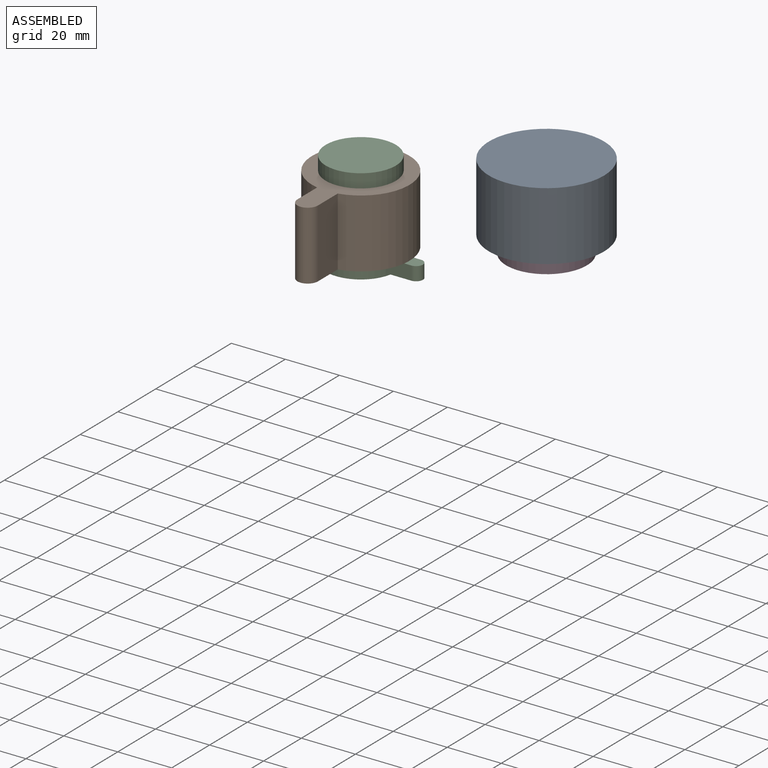
[diagram: assembled view]
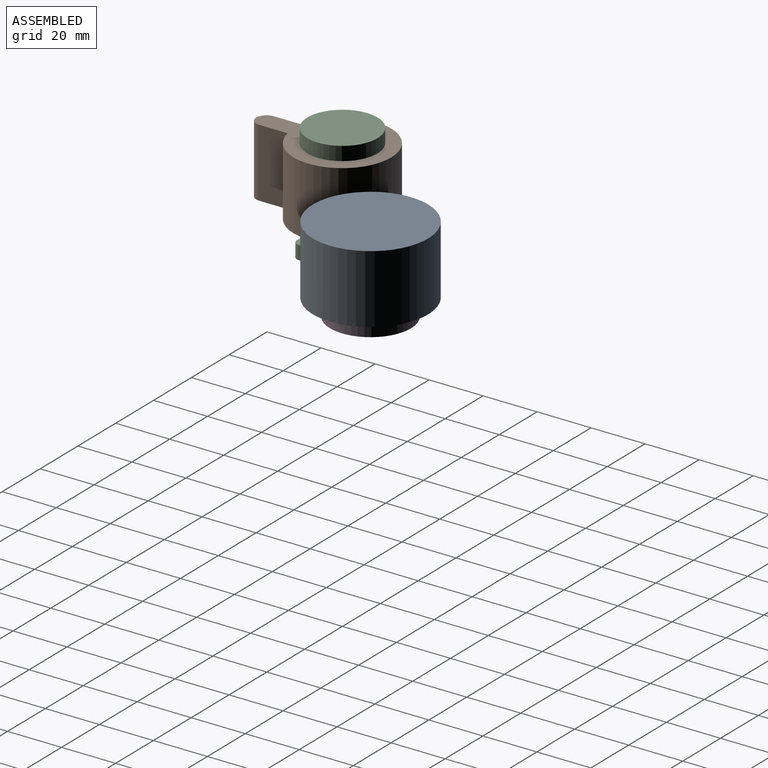
[diagram: assembled view, second angle]
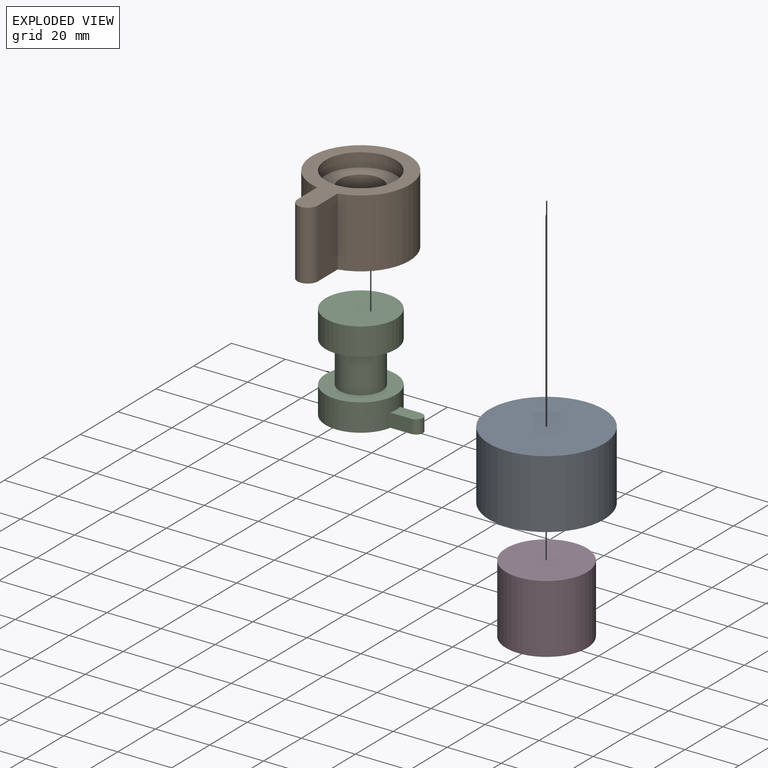
[diagram: exploded view]
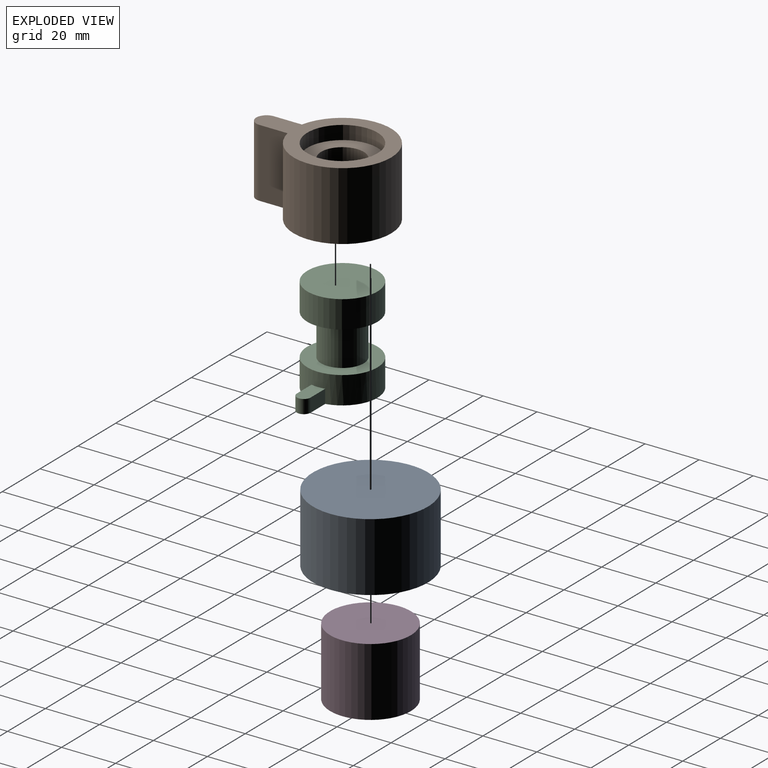
[diagram: exploded view, second angle]
ASSEMBLY  parts=4 mates=2
PART A: 5 faces, bbox 42.7x42.7x25.4 mm
  f0: cylinder r=21.34mm len=42.68mm, axis (0,0,-1), area 3405.4mm2, adj f1,f2
  f1: plane 42.68x42.68mm, normal (0,0,1), area 1430.4mm2, adj f0
  f2: plane 42.68x42.68mm, normal (0,0,-1), area 724.7mm2, adj f0,f3
  f3: cylinder r=14.99mm len=29.98mm, axis (0,0,-1), area 1794mm2, adj f2,f4
  f4: plane 29.98x29.98mm, normal (0,0,-1), area 705.7mm2, adj f3
PART B: 11 faces, bbox 36.2x50x25.4 mm
  f0: cylinder r=18.08mm len=36.17mm, axis (0,0,-1), area 2690.9mm2, adj f2,f3,f8,f9
  f1: cylinder r=7.92mm len=15.85mm, axis (0,0,1), area 758.7mm2, adj f5,f7
  f2: plane 49.99x36.17mm, normal (0,0,1), area 596.3mm2, adj f0,f4,f8,f9,f10
  f3: plane 49.99x36.17mm, normal (0,0,-1), area 596.3mm2, adj f0,f6,f8,f9,f10
  f4: cylinder r=13mm len=26.01mm, axis (0,0,1), area 415mm2, adj f2,f5
  f5: plane 26.01x26.01mm, normal (0,0,1), area 334mm2, adj f1,f4
  f6: cylinder r=13mm len=26.01mm, axis (0,0,1), area 415mm2, adj f3,f7
  f7: plane 26.01x26.01mm, normal (0,0,-1), area 334mm2, adj f1,f6
  f8: plane 25.4x10.42mm, normal (-1,0,0), area 264.7mm2, adj f0,f2,f3,f10
  f9: plane 25.4x10.42mm, normal (1,0,0), area 264.7mm2, adj f0,f2,f3,f10
  f10: cylinder r=3.81mm len=25.4mm, axis (0,0,-1), area 304mm2, adj f2,f3,f8,f9
PART C: 11 faces, bbox 36x26x35.6 mm
  f0: plane 26.01x26.01mm, normal (0,0,1), area 531.2mm2, adj f1
  f1: cylinder r=13mm len=26.01mm, axis (0,0,-1), area 830.1mm2, adj f0,f2
  f2: plane 26.01x26.01mm, normal (0,0,-1), area 334mm2, adj f1,f3
  f3: cylinder r=7.92mm len=15.85mm, axis (0,0,1), area 758.7mm2, adj f2,f5
  f4: cylinder r=13mm len=26.01mm, axis (0,0,1), area 804.1mm2, adj f5,f6,f7,f8,f9
  f5: plane 26.01x26.01mm, normal (0,0,1), area 334mm2, adj f3,f4
  f6: plane 36x26.01mm, normal (0,0,-1), area 579.6mm2, adj f4,f7,f8,f10
  f7: plane 7.7x5.08mm, normal (0,-1,0), area 39.1mm2, adj f4,f6,f9,f10
  f8: plane 7.7x5.08mm, normal (0,1,0), area 39.1mm2, adj f4,f6,f9,f10
  f9: plane 10.24x5.08mm, normal (0,0,1), area 48.4mm2, adj f4,f7,f8,f10
  f10: cylinder r=2.54mm len=5.08mm, axis (0,0,-1), area 40.5mm2, adj f6,f7,f8,f9
PART D: 3 faces, bbox 30x30x25.4 mm
  f0: cylinder r=14.99mm len=29.98mm, axis (0,0,-1), area 2391.9mm2, adj f1,f2
  f1: plane 29.98x29.98mm, normal (0,0,1), area 705.7mm2, adj f0
  f2: plane 29.98x29.98mm, normal (0,0,-1), area 705.7mm2, adj f0
PLACE A at identity
PLACE B at identity
PLACE C at identity
PLACE D at identity
MATE revolute C.f3 <-> B.f1  axis (0,0,1) through (0,0,12.7)mm
MATE slider D.f0 <-> A.f0  axis (0,0,-1) through (41.26,39.29,19.05)mm
